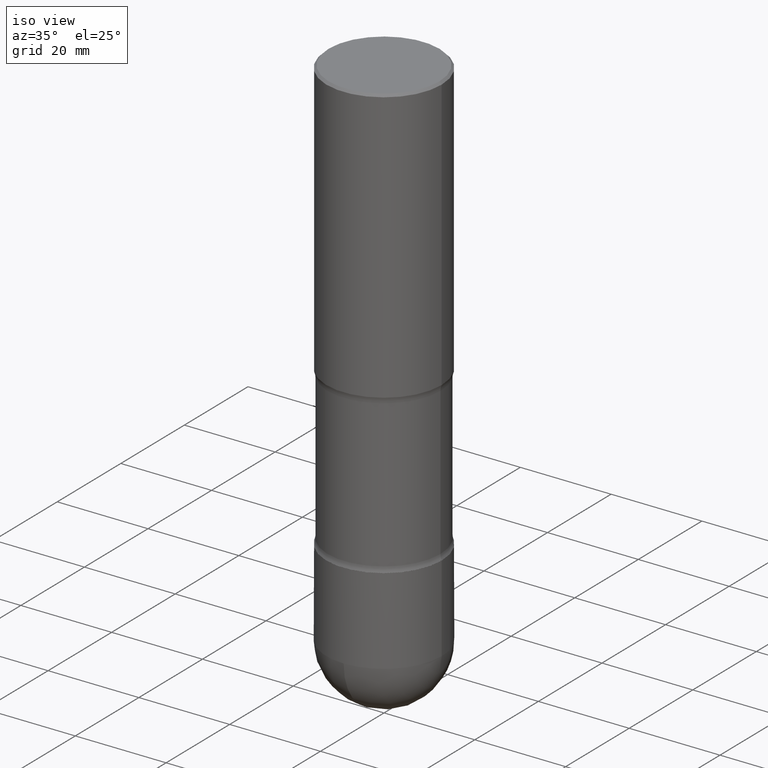
[diagram: clean part render]
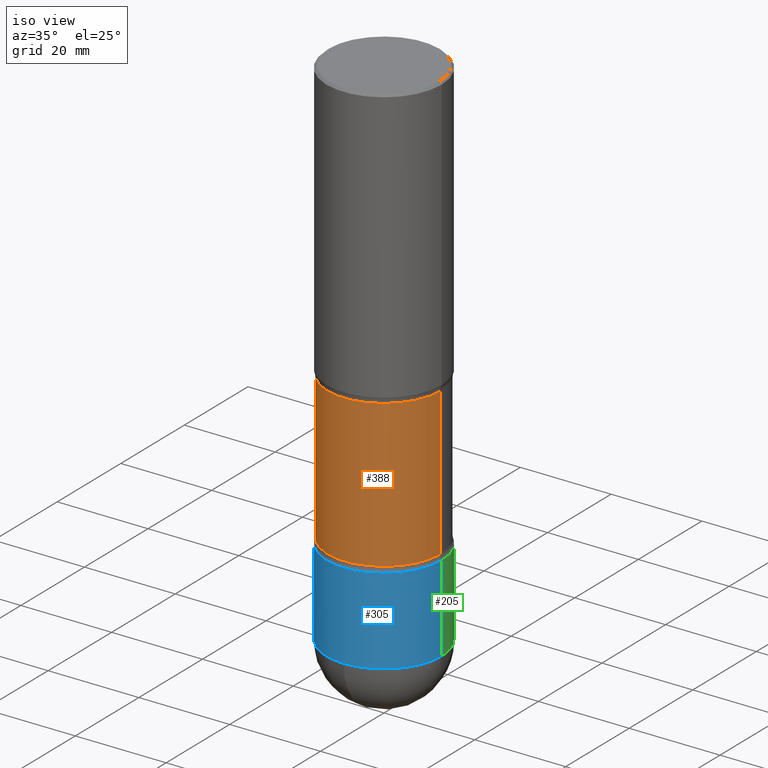
[diagram: same view with three faces highlighted in distinct colors, each labeled with its STEP entity id]
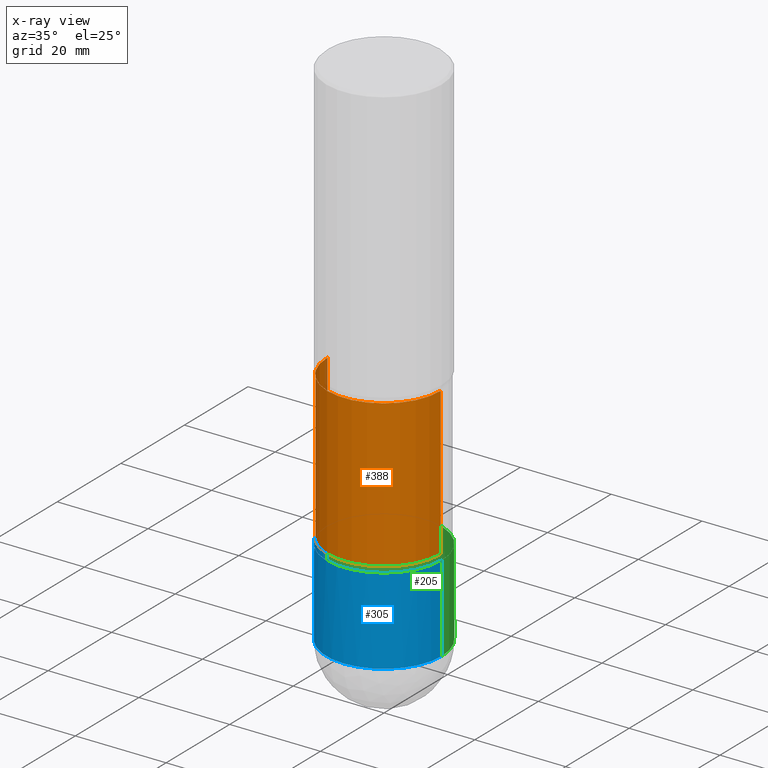
[diagram: x-ray of the same camera — body ghosted, the three highlighted faces saturated]
A machine part, iso view with three faces highlighted in distinct colors.
The next image is the same camera in x-ray (body ghosted, the three faces saturated) — at least one of them is partly hidden behind the body in this view.
Their STEP definitions:

[orange] entity #388 — the highlighted cylindrical surface (partial cylindrical patch) has radius 12.446 mm, axis along (0, -0, -1).
#22 = VERTEX_POINT ( 'NONE', #539 ) ;
#26 = CARTESIAN_POINT ( 'NONE',  ( 9.050705008053328258E-29, -1.292200806612949328E-14, -3.701010205144336318 ) ) ;
#29 = CIRCLE ( 'NONE', #253, 0.4899999999999994360 ) ;
#67 = LINE ( 'NONE', #229, #479 ) ;
#88 = CARTESIAN_POINT ( 'NONE',  ( 9.170508023194262238E-29, -1.309305502066179741E-14, -3.750000000000000000 ) ) ;
#98 = CARTESIAN_POINT ( 'NONE',  ( 0.4899999999999994360, -1.405430561911518224E-14, -3.701010205144336318 ) ) ;
#101 = DIRECTION ( 'NONE',  ( 2.445468806185136877E-29, -3.491481338843145188E-15, -1.000000000000000000 ) ) ;
#113 = ORIENTED_EDGE ( 'NONE', *, *, #496, .T. ) ;
#124 = EDGE_CURVE ( 'NONE', #242, #22, #29, .T. ) ;
#126 = FACE_OUTER_BOUND ( 'NONE', #419, .T. ) ;
#206 = VECTOR ( 'NONE', #101, 39.37007874015748143 ) ;
#222 = DIRECTION ( 'NONE',  ( 2.445468806185136597E-29, -3.491481338843145583E-15, -1.000000000000000000 ) ) ;
#225 = CARTESIAN_POINT ( 'NONE',  ( 5.927791429830635639E-29, -8.463315134284777408E-15, -2.423989794855664570 ) ) ;
#229 = CARTESIAN_POINT ( 'NONE',  ( -0.4899999999999994360, -9.671403308595530512E-15, -3.750000000000000000 ) ) ;
#237 = DIRECTION ( 'NONE',  ( -1.000000000000000000, 6.982962677686265133E-15, 0.000000000000000000 ) ) ;
#242 = VERTEX_POINT ( 'NONE', #98 ) ;
#253 = AXIS2_PLACEMENT_3D ( 'NONE', #26, #287, #237 ) ;
#287 = DIRECTION ( 'NONE',  ( 2.445468806185136597E-29, -3.491481338843145583E-15, -1.000000000000000000 ) ) ;
#294 = VERTEX_POINT ( 'NONE', #299 ) ;
#297 = DIRECTION ( 'NONE',  ( 2.445468806185136597E-29, -3.491481338843145583E-15, -1.000000000000000000 ) ) ;
#299 = CARTESIAN_POINT ( 'NONE',  ( -0.4899999999999994360, -5.041663422218510506E-15, -2.423989794855664570 ) ) ;
#302 = DIRECTION ( 'NONE',  ( -1.000000000000000000, 6.982962677686265133E-15, 0.000000000000000000 ) ) ;
#306 = CIRCLE ( 'NONE', #336, 0.4899999999999994360 ) ;
#321 = CARTESIAN_POINT ( 'NONE',  ( 0.4899999999999994360, -1.177373816591553444E-14, -2.423989794855664570 ) ) ;
#328 = AXIS2_PLACEMENT_3D ( 'NONE', #88, #222, #302 ) ;
#336 = AXIS2_PLACEMENT_3D ( 'NONE', #225, #297, #566 ) ;
#340 = VERTEX_POINT ( 'NONE', #321 ) ;
#346 = DIRECTION ( 'NONE',  ( 2.445468806185136877E-29, -3.491481338843145188E-15, -1.000000000000000000 ) ) ;
#347 = EDGE_CURVE ( 'NONE', #340, #242, #357, .T. ) ;
#355 = CARTESIAN_POINT ( 'NONE',  ( 0.4899999999999994360, -1.645469903956984195E-14, -3.750000000000000000 ) ) ;
#357 = LINE ( 'NONE', #355, #206 ) ;
#361 = ORIENTED_EDGE ( 'NONE', *, *, #347, .F. ) ;
#388 = ADVANCED_FACE ( 'NONE', ( #126 ), #480, .T. ) ;
#401 = ORIENTED_EDGE ( 'NONE', *, *, #506, .T. ) ;
#419 = EDGE_LOOP ( 'NONE', ( #361, #401, #113, #466 ) ) ;
#466 = ORIENTED_EDGE ( 'NONE', *, *, #124, .F. ) ;
#479 = VECTOR ( 'NONE', #346, 39.37007874015748143 ) ;
#480 = CYLINDRICAL_SURFACE ( 'NONE', #328, 0.4899999999999994360 ) ;
#496 = EDGE_CURVE ( 'NONE', #294, #22, #67, .T. ) ;
#506 = EDGE_CURVE ( 'NONE', #340, #294, #306, .T. ) ;
#539 = CARTESIAN_POINT ( 'NONE',  ( -0.4899999999999994360, -9.500356354063226377E-15, -3.701010205144336318 ) ) ;
#566 = DIRECTION ( 'NONE',  ( -1.000000000000000000, 6.982962677686267499E-15, 0.000000000000000000 ) ) ;

[blue] entity #305 — the highlighted cylindrical surface (partial cylindrical patch) has radius 12.7 mm, axis along (-0, 0, 1).
#6 = CARTESIAN_POINT ( 'NONE',  ( -0.4999999999999993339, -1.084964684392748411E-14, -4.499999999999999112 ) ) ;
#9 = ORIENTED_EDGE ( 'NONE', *, *, #167, .T. ) ;
#12 = ORIENTED_EDGE ( 'NONE', *, *, #196, .F. ) ;
#20 = CARTESIAN_POINT ( 'NONE',  ( 1.100460962783311244E-28, -1.571166602479415374E-14, -4.499999999999999112 ) ) ;
#23 = CIRCLE ( 'NONE', #289, 0.4999999999999993339 ) ;
#31 = EDGE_CURVE ( 'NONE', #179, #495, #284, .T. ) ;
#45 = ORIENTED_EDGE ( 'NONE', *, *, #250, .T. ) ;
#53 = CARTESIAN_POINT ( 'NONE',  ( 1.100460962783311244E-28, -1.571166602479415374E-14, -4.499999999999999112 ) ) ;
#58 = AXIS2_PLACEMENT_3D ( 'NONE', #522, #68, #475 ) ;
#68 = DIRECTION ( 'NONE',  ( -2.445468806185136597E-29, 3.491481338843145583E-15, 1.000000000000000000 ) ) ;
#105 = DIRECTION ( 'NONE',  ( -2.445468806185136597E-29, 3.491481338843145583E-15, 1.000000000000000000 ) ) ;
#129 = LINE ( 'NONE', #267, #508 ) ;
#137 = CARTESIAN_POINT ( 'NONE',  ( 9.170508023194262238E-29, -1.309305502066179741E-14, -3.750000000000000000 ) ) ;
#152 = DIRECTION ( 'NONE',  ( 1.000000000000000000, -6.982962677686264344E-15, 0.000000000000000000 ) ) ;
#167 = EDGE_CURVE ( 'NONE', #399, #179, #23, .T. ) ;
#176 = CYLINDRICAL_SURFACE ( 'NONE', #58, 0.4999999999999993339 ) ;
#179 = VERTEX_POINT ( 'NONE', #359 ) ;
#183 = EDGE_LOOP ( 'NONE', ( #12, #9, #303, #45, #524 ) ) ;
#191 = DIRECTION ( 'NONE',  ( 1.000000000000000000, -6.982962677686264344E-15, 0.000000000000000000 ) ) ;
#196 = EDGE_CURVE ( 'NONE', #399, #462, #484, .T. ) ;
#216 = FACE_OUTER_BOUND ( 'NONE', #183, .T. ) ;
#217 = AXIS2_PLACEMENT_3D ( 'NONE', #53, #233, #152 ) ;
#227 = CIRCLE ( 'NONE', #247, 0.4999999999999993339 ) ;
#233 = DIRECTION ( 'NONE',  ( -2.445468806185136597E-29, 3.491481338843145583E-15, 1.000000000000000000 ) ) ;
#247 = AXIS2_PLACEMENT_3D ( 'NONE', #137, #313, #444 ) ;
#250 = EDGE_CURVE ( 'NONE', #495, #345, #129, .T. ) ;
#267 = CARTESIAN_POINT ( 'NONE',  ( 0.4999999999999993339, -3.491481338843128622E-15, 2.438088387897964533E-29 ) ) ;
#284 = CIRCLE ( 'NONE', #217, 0.4999999999999993339 ) ;
#289 = AXIS2_PLACEMENT_3D ( 'NONE', #20, #105, #191 ) ;
#293 = CARTESIAN_POINT ( 'NONE',  ( 0.4999999999999993339, -1.789384186157110736E-14, -4.499999999999999112 ) ) ;
#303 = ORIENTED_EDGE ( 'NONE', *, *, #31, .T. ) ;
#304 = VECTOR ( 'NONE', #326, 39.37007874015748143 ) ;
#305 = ADVANCED_FACE ( 'NONE', ( #216 ), #176, .T. ) ;
#313 = DIRECTION ( 'NONE',  ( -2.445468806185136597E-29, 3.491481338843145583E-15, 1.000000000000000000 ) ) ;
#326 = DIRECTION ( 'NONE',  ( -2.445468806185136877E-29, 3.491481338843145188E-15, 1.000000000000000000 ) ) ;
#345 = VERTEX_POINT ( 'NONE', #499 ) ;
#359 = CARTESIAN_POINT ( 'NONE',  ( -3.491481338843020943E-15, -0.5000000000000154321, -4.499999999999998224 ) ) ;
#371 = CARTESIAN_POINT ( 'NONE',  ( -0.4999999999999993339, 3.552713678800496196E-15, -2.459467545127449528E-29 ) ) ;
#399 = VERTEX_POINT ( 'NONE', #6 ) ;
#436 = CARTESIAN_POINT ( 'NONE',  ( -0.4999999999999993339, -1.084964684392747938E-14, -3.750000000000000000 ) ) ;
#438 = DIRECTION ( 'NONE',  ( -2.445468806185136877E-29, 3.491481338843145188E-15, 1.000000000000000000 ) ) ;
#444 = DIRECTION ( 'NONE',  ( 1.000000000000000000, -6.982962677686264344E-15, 0.000000000000000000 ) ) ;
#451 = EDGE_CURVE ( 'NONE', #462, #345, #227, .T. ) ;
#462 = VERTEX_POINT ( 'NONE', #436 ) ;
#475 = DIRECTION ( 'NONE',  ( 1.000000000000000000, -6.982962677686266711E-15, 4.876176775795935793E-29 ) ) ;
#484 = LINE ( 'NONE', #371, #304 ) ;
#495 = VERTEX_POINT ( 'NONE', #293 ) ;
#499 = CARTESIAN_POINT ( 'NONE',  ( 0.4999999999999993339, -1.658453635950492446E-14, -3.750000000000000000 ) ) ;
#508 = VECTOR ( 'NONE', #438, 39.37007874015748143 ) ;
#522 = CARTESIAN_POINT ( 'NONE',  ( 0.000000000000000000, 0.000000000000000000, 0.000000000000000000 ) ) ;
#524 = ORIENTED_EDGE ( 'NONE', *, *, #451, .F. ) ;

[green] entity #205 — the highlighted cylindrical surface (partial cylindrical patch) has radius 12.7 mm, axis along (-0, 0, 1).
#6 = CARTESIAN_POINT ( 'NONE',  ( -0.4999999999999993339, -1.084964684392748411E-14, -4.499999999999999112 ) ) ;
#24 = DIRECTION ( 'NONE',  ( 1.000000000000000000, -6.982962677686264344E-15, 0.000000000000000000 ) ) ;
#27 = EDGE_CURVE ( 'NONE', #495, #434, #452, .T. ) ;
#61 = DIRECTION ( 'NONE',  ( 1.000000000000000000, -6.982962677686264344E-15, 0.000000000000000000 ) ) ;
#64 = CYLINDRICAL_SURFACE ( 'NONE', #477, 0.4999999999999993339 ) ;
#71 = ORIENTED_EDGE ( 'NONE', *, *, #250, .F. ) ;
#100 = EDGE_CURVE ( 'NONE', #434, #399, #273, .T. ) ;
#104 = ORIENTED_EDGE ( 'NONE', *, *, #100, .T. ) ;
#107 = CARTESIAN_POINT ( 'NONE',  ( 1.100460962783311244E-28, -1.571166602479415374E-14, -4.499999999999999112 ) ) ;
#108 = DIRECTION ( 'NONE',  ( -2.445468806185136597E-29, 3.491481338843145583E-15, 1.000000000000000000 ) ) ;
#117 = AXIS2_PLACEMENT_3D ( 'NONE', #107, #457, #61 ) ;
#129 = LINE ( 'NONE', #267, #508 ) ;
#144 = CARTESIAN_POINT ( 'NONE',  ( 9.170508023194262238E-29, -1.309305502066179741E-14, -3.750000000000000000 ) ) ;
#196 = EDGE_CURVE ( 'NONE', #399, #462, #484, .T. ) ;
#205 = ADVANCED_FACE ( 'NONE', ( #422 ), #64, .T. ) ;
#250 = EDGE_CURVE ( 'NONE', #495, #345, #129, .T. ) ;
#267 = CARTESIAN_POINT ( 'NONE',  ( 0.4999999999999993339, -3.491481338843128622E-15, 2.438088387897964533E-29 ) ) ;
#270 = ORIENTED_EDGE ( 'NONE', *, *, #27, .T. ) ;
#273 = CIRCLE ( 'NONE', #117, 0.4999999999999993339 ) ;
#286 = EDGE_LOOP ( 'NONE', ( #104, #381, #503, #71, #270 ) ) ;
#293 = CARTESIAN_POINT ( 'NONE',  ( 0.4999999999999993339, -1.789384186157110736E-14, -4.499999999999999112 ) ) ;
#304 = VECTOR ( 'NONE', #326, 39.37007874015748143 ) ;
#326 = DIRECTION ( 'NONE',  ( -2.445468806185136877E-29, 3.491481338843145188E-15, 1.000000000000000000 ) ) ;
#339 = EDGE_CURVE ( 'NONE', #345, #462, #547, .T. ) ;
#343 = AXIS2_PLACEMENT_3D ( 'NONE', #447, #544, #24 ) ;
#345 = VERTEX_POINT ( 'NONE', #499 ) ;
#371 = CARTESIAN_POINT ( 'NONE',  ( -0.4999999999999993339, 3.552713678800496196E-15, -2.459467545127449528E-29 ) ) ;
#381 = ORIENTED_EDGE ( 'NONE', *, *, #196, .T. ) ;
#399 = VERTEX_POINT ( 'NONE', #6 ) ;
#400 = DIRECTION ( 'NONE',  ( 1.000000000000000000, -6.982962677686264344E-15, 0.000000000000000000 ) ) ;
#402 = DIRECTION ( 'NONE',  ( -2.445468806185136597E-29, 3.491481338843145583E-15, 1.000000000000000000 ) ) ;
#422 = FACE_OUTER_BOUND ( 'NONE', #286, .T. ) ;
#434 = VERTEX_POINT ( 'NONE', #513 ) ;
#436 = CARTESIAN_POINT ( 'NONE',  ( -0.4999999999999993339, -1.084964684392747938E-14, -3.750000000000000000 ) ) ;
#438 = DIRECTION ( 'NONE',  ( -2.445468806185136877E-29, 3.491481338843145188E-15, 1.000000000000000000 ) ) ;
#447 = CARTESIAN_POINT ( 'NONE',  ( 1.100460962783311244E-28, -1.571166602479415374E-14, -4.499999999999999112 ) ) ;
#452 = CIRCLE ( 'NONE', #343, 0.4999999999999993339 ) ;
#457 = DIRECTION ( 'NONE',  ( -2.445468806185136597E-29, 3.491481338843145583E-15, 1.000000000000000000 ) ) ;
#462 = VERTEX_POINT ( 'NONE', #436 ) ;
#477 = AXIS2_PLACEMENT_3D ( 'NONE', #549, #108, #551 ) ;
#484 = LINE ( 'NONE', #371, #304 ) ;
#495 = VERTEX_POINT ( 'NONE', #293 ) ;
#499 = CARTESIAN_POINT ( 'NONE',  ( 0.4999999999999993339, -1.658453635950492446E-14, -3.750000000000000000 ) ) ;
#503 = ORIENTED_EDGE ( 'NONE', *, *, #339, .F. ) ;
#508 = VECTOR ( 'NONE', #438, 39.37007874015748143 ) ;
#513 = CARTESIAN_POINT ( 'NONE',  ( 3.552713678800606637E-15, 0.4999999999999837352, -4.500000000000000888 ) ) ;
#544 = DIRECTION ( 'NONE',  ( -2.445468806185136597E-29, 3.491481338843145583E-15, 1.000000000000000000 ) ) ;
#547 = CIRCLE ( 'NONE', #558, 0.4999999999999993339 ) ;
#549 = CARTESIAN_POINT ( 'NONE',  ( 0.000000000000000000, 0.000000000000000000, 0.000000000000000000 ) ) ;
#551 = DIRECTION ( 'NONE',  ( 1.000000000000000000, -6.982962677686266711E-15, 4.876176775795935793E-29 ) ) ;
#558 = AXIS2_PLACEMENT_3D ( 'NONE', #144, #402, #400 ) ;